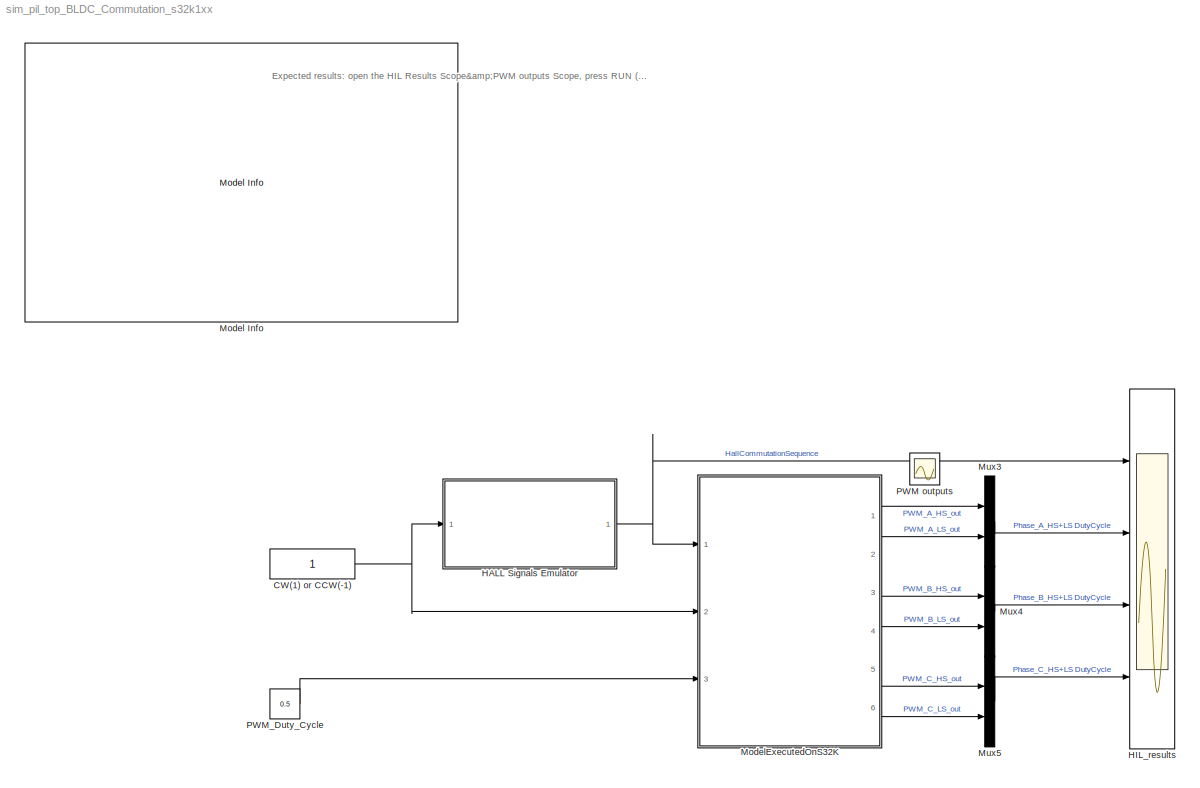
MODEL sim_pil_top_BLDC_Commutation_s32k1xx
KIND model
CONFIG InitFcn = mbd_s32k_consistency_checks(bdroot(gcs));
BLOCK [Constant] CW(1) or CCW(-1)
  OutDataTypeStr = single
  OutMax = 1
  OutMin = -1
  SID = 26
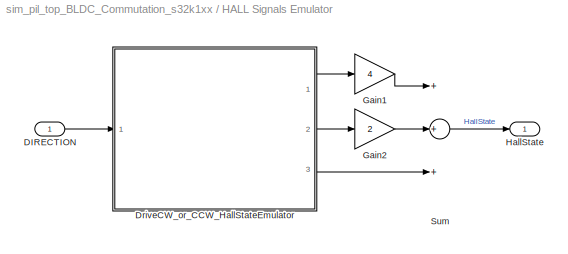
BLOCK [SubSystem] HALL Signals Emulator
  Ports = [1, 1]
  RequestExecContextInheritance = off
  SID = 27
  Variant = off
BLOCK [Inport] HALL Signals Emulator/DIRECTION
  IconDisplay = Port number
  SID = 28
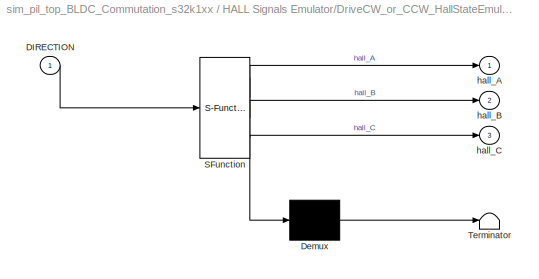
BLOCK [SubSystem] HALL Signals Emulator/DriveCW_or_CCW_HallStateEmulator
  ErrorFcn = Stateflow.Translate.translate
  PermitHierarchicalResolution = ExplicitOnly
  Ports = [1, 3]
  RequestExecContextInheritance = off
  SFBlockType = Chart
  SID = 29
  TreatAsAtomicUnit = on
  Variant = off
BLOCK [Demux] HALL Signals Emulator/DriveCW_or_CCW_HallStateEmulator/ Demux 
  Outputs = 1
  Ports = [1, 1]
  SID = 29::98
BLOCK [S-Function] HALL Signals Emulator/DriveCW_or_CCW_HallStateEmulator/ SFunction 
  EnableBusSupport = off
  FunctionName = sf_sfun
  PortCounts = [1 4]
  Ports = [1, 4]
  SFcnIsStateOwnerBlock = off
  SFunctionDeploymentMode = off
  SID = 29::97
  Tag = Stateflow S-Function sim_pil_top_BLDC_Commutation_s32k1xx 5
BLOCK [Terminator] HALL Signals Emulator/DriveCW_or_CCW_HallStateEmulator/ Terminator 
  SID = 29::99
BLOCK [Inport] HALL Signals Emulator/DriveCW_or_CCW_HallStateEmulator/DIRECTION
  IconDisplay = Port number
  SID = 29::84
BLOCK [Outport] HALL Signals Emulator/DriveCW_or_CCW_HallStateEmulator/hall_A
  IconDisplay = Port number
  SID = 29::81
BLOCK [Outport] HALL Signals Emulator/DriveCW_or_CCW_HallStateEmulator/hall_B
  IconDisplay = Port number
  Port = 2
  SID = 29::82
BLOCK [Outport] HALL Signals Emulator/DriveCW_or_CCW_HallStateEmulator/hall_C
  IconDisplay = Port number
  Port = 3
  SID = 29::83
BLOCK [Gain] HALL Signals Emulator/Gain1
  Gain = 4
  OutDataTypeStr = uint8
  SID = 30
  SaturateOnIntegerOverflow = off
BLOCK [Gain] HALL Signals Emulator/Gain2
  Gain = 2
  OutDataTypeStr = uint8
  SID = 31
  SaturateOnIntegerOverflow = off
BLOCK [Outport] HALL Signals Emulator/HallState
  IconDisplay = Port number
  SID = 33
BLOCK [Sum] HALL Signals Emulator/Sum
  AccumDataTypeStr = uint8
  InputSameDT = off
  Inputs = +++
  OutDataTypeStr = uint8
  Ports = [3, 1]
  SID = 32
  SaturateOnIntegerOverflow = off
BLOCK [Scope] HIL_results
  NumInputPorts = 4
  Ports = [4]
  SID = 44
  ScopeSpecificationString = Simulink.scopes.TimeScopeBlockCfg('CurrentConfiguration', extmgr.ConfigurationSet(extmgr.Configuration('Core','General UI',true),extmgr.Configuration('Core','Source UI',true),extmgr.Configuration('Sources','WiredSimulink',true),extmgr.Configuration('Visuals','Time Domain',true,'SerializedDisplays',{struct('MinYLimReal','0.375','MaxYLimReal','6.625','YLabelReal','','MinYLimMag','0.375','MaxYLimMag'...<+3928ch>
BLOCK [Reference] Model Info  REF=simulink/Model-Wide\nUtilities/Model Info
  DisplayStringWithTags = Model Name: %<ModelName>\n\nDescription: %<Description>
  Frame = off
  HorizontalTextAlignment = Left
  LeftAlignmentValue = 0.02
  MaskDisplayString = Model Name: sim_pil_top_BLDC_Commutation_s32k1xx\\n\\nDescription: This model demonstrates the PIL concept. \\nThe Hall based commutation and PWM control is executed on the S32K144 uP\\nand the results are upleaded via UART into Simulink where it can be compared \\nagainst the results obtained with sim_sil_top_BLDC_Commutation_s32k14 model \\n\\nInputs:\\n- Rotation DIRECTION [CW(1) or CCW(-1)] ca...<+739ch>
  Ports = []
  SID = 34
  SourceBlock = simulink/Model-Wide\nUtilities/Model Info
  SourceProductBaseCode = SL
  SourceProductName = Simulink
  SourceType = CMBlock
BLOCK [ModelReference] ModelExecutedOnS32K
  ModelNameDialog = sim_pil_target_BLDC_Commutation_s32k1xx.mdl
  ModelReferenceVersion = 1.104
  Ports = [3, 6]
  SID = 61
  Variant = off
BLOCK [Mux] Mux3
  DisplayOption = bar
  Inputs = 2
  Ports = [2, 1]
  SID = 35
BLOCK [Mux] Mux4
  DisplayOption = bar
  Inputs = 2
  Ports = [2, 1]
  SID = 36
BLOCK [Mux] Mux5
  DisplayOption = bar
  Inputs = 2
  Ports = [2, 1]
  SID = 37
BLOCK [Scope] PWM outputs
  Floating = on
  NumInputPorts = 1
  Ports = []
  SID = 42
  ScopeSpecificationString = Simulink.scopes.TimeScopeBlockCfg('CurrentConfiguration', extmgr.ConfigurationSet(extmgr.Configuration('Core','General UI',true),extmgr.Configuration('Core','Source UI',true),extmgr.Configuration('Sources','WiredSimulink',true,'DataLoggingVariableName','ScopeData4'),extmgr.Configuration('Visuals','Time Domain',true,'SerializedDisplays',{struct('MinYLimReal','-0.125','MaxYLimReal','1.125','YLabelRe...<+2054ch>
BLOCK [Constant] PWM_Duty_Cycle
  OutDataTypeStr = single
  OutMax = 100
  OutMin = 0
  SID = 43
  Value = 0.5
ANNOTATION (root): \n \n Expected results: open the HIL Results Scope&PWM outputs Scope, press RUN (CTRL+T) to run the model and check if the signals are the same with these ones \n \n
NET CW(1) or CCW(-1):1 -> HALL Signals Emulator:1, ModelExecutedOnS32K:2
LINE HALL Signals Emulator/DIRECTION:1 -> HALL Signals Emulator/DriveCW_or_CCW_HallStateEmulator:1
LINE HALL Signals Emulator/DriveCW_or_CCW_HallStateEmulator/ Demux :1 -> HALL Signals Emulator/DriveCW_or_CCW_HallStateEmulator/ Terminator :1
LINE HALL Signals Emulator/DriveCW_or_CCW_HallStateEmulator/ SFunction :1 -> HALL Signals Emulator/DriveCW_or_CCW_HallStateEmulator/ Demux :1
LINE HALL Signals Emulator/DriveCW_or_CCW_HallStateEmulator/ SFunction :2 -> HALL Signals Emulator/DriveCW_or_CCW_HallStateEmulator/hall_A:1
LINE HALL Signals Emulator/DriveCW_or_CCW_HallStateEmulator/ SFunction :3 -> HALL Signals Emulator/DriveCW_or_CCW_HallStateEmulator/hall_B:1
LINE HALL Signals Emulator/DriveCW_or_CCW_HallStateEmulator/ SFunction :4 -> HALL Signals Emulator/DriveCW_or_CCW_HallStateEmulator/hall_C:1
LINE HALL Signals Emulator/DriveCW_or_CCW_HallStateEmulator/DIRECTION:1 -> HALL Signals Emulator/DriveCW_or_CCW_HallStateEmulator/ SFunction :1
LINE HALL Signals Emulator/DriveCW_or_CCW_HallStateEmulator:1 -> HALL Signals Emulator/Gain1:1
LINE HALL Signals Emulator/DriveCW_or_CCW_HallStateEmulator:2 -> HALL Signals Emulator/Gain2:1
LINE HALL Signals Emulator/DriveCW_or_CCW_HallStateEmulator:3 -> HALL Signals Emulator/Sum:3
LINE HALL Signals Emulator/Gain1:1 -> HALL Signals Emulator/Sum:1
LINE HALL Signals Emulator/Gain2:1 -> HALL Signals Emulator/Sum:2
LINE HALL Signals Emulator/Sum:1 -> HALL Signals Emulator/HallState:1
NET HALL Signals Emulator:1 -> HIL_results:1, ModelExecutedOnS32K:1
LINE ModelExecutedOnS32K:1 -> Mux3:1
LINE ModelExecutedOnS32K:2 -> Mux3:2
LINE ModelExecutedOnS32K:3 -> Mux4:1
LINE ModelExecutedOnS32K:4 -> Mux4:2
LINE ModelExecutedOnS32K:5 -> Mux5:1
LINE ModelExecutedOnS32K:6 -> Mux5:2
LINE Mux3:1 -> HIL_results:2
LINE Mux4:1 -> HIL_results:3
LINE Mux5:1 -> HIL_results:4
LINE PWM_Duty_Cycle:1 -> ModelExecutedOnS32K:3
note: NET lines group one-source signal fan-out (src -> all destinations, sorted); 1:1 wires keep LINE
CHART HALL Signals Emulator/DriveCW_or_CCW_HallStateEmulator states=11 transitions=13
  STATE_LABEL 'STEP1\\nentry:\\nhall_A = uint8(1);\\nhall_B = uint8(0);\\nhall_C = uint8(0);\\n'
  STATE_LABEL 'STEP2_CCW\\nentry:\\nhall_A = uint8(1);\\nhall_B = uint8(0);\\nhall_C = uint8(1);\\n'
  STATE_LABEL 'STEP2_CW\\nentry:\\nhall_A = uint8(1);\\nhall_B = uint8(1);\\nhall_C = uint8(0);\\n'
  STATE_LABEL 'STEP3_CCW\\nentry:\\nhall_A = uint8(0);\\nhall_B = uint8(0);\\nhall_C = uint8(1);\\n'
  STATE_LABEL 'STEP3\\nentry:\\nhall_A = uint8(0);\\nhall_B = uint8(1);\\nhall_C = uint8(0);\\n'
  STATE_LABEL 'STEP4_CCW\\nentry:\\nhall_A = uint8(0);\\nhall_B = uint8(1);\\nhall_C = uint8(1);\\n'
  STATE_LABEL 'STEP4\\nentry:\\nhall_A = uint8(0);\\nhall_B = uint8(1);\\nhall_C = uint8(1);\\n'
  STATE_LABEL 'STEP5_CCW\\nentry:\\nhall_A = uint8(0);\\nhall_B = uint8(1);\\nhall_C = uint8(0);\\n'
  STATE_LABEL 'STEP5\\nentry:\\nhall_A = uint8(0);\\nhall_B = uint8(0);\\nhall_C = uint8(1);\\n'
  STATE_LABEL 'STEP6_CCW\\nentry:\\nhall_A = uint8(1);\\nhall_B = uint8(1);\\nhall_C = uint8(0);\\n'
  STATE_LABEL 'STEP6\\nentry:\\nhall_A = uint8(1);\\nhall_B = uint8(0);\\nhall_C = uint8(1);\\n'
